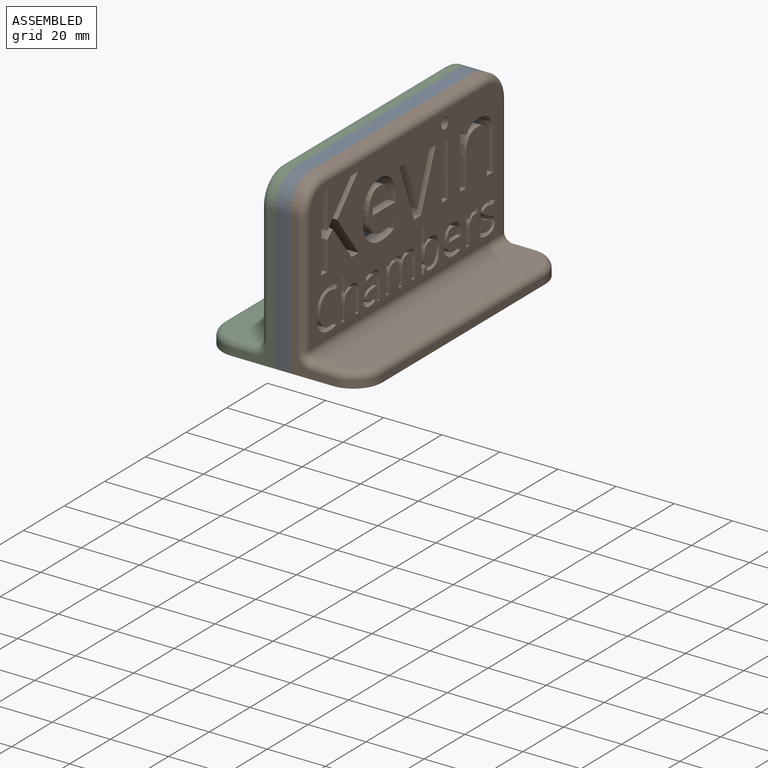
[diagram: assembled view]
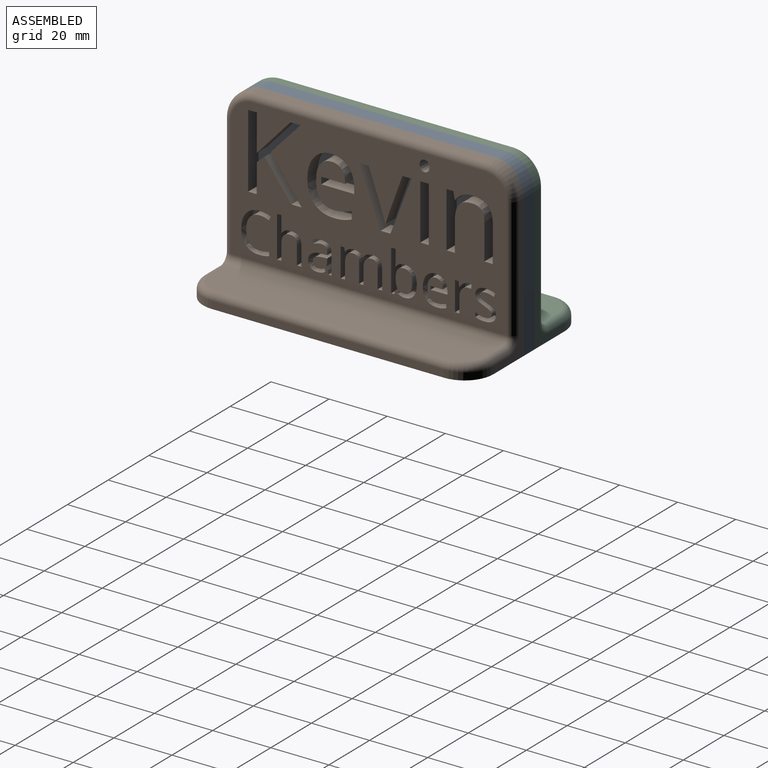
[diagram: assembled view, second angle]
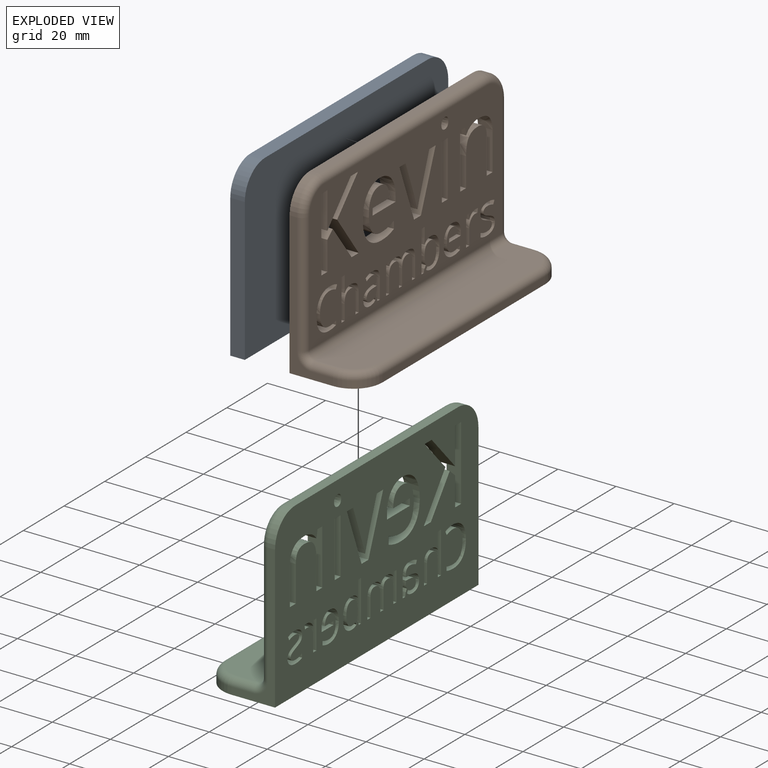
[diagram: exploded view]
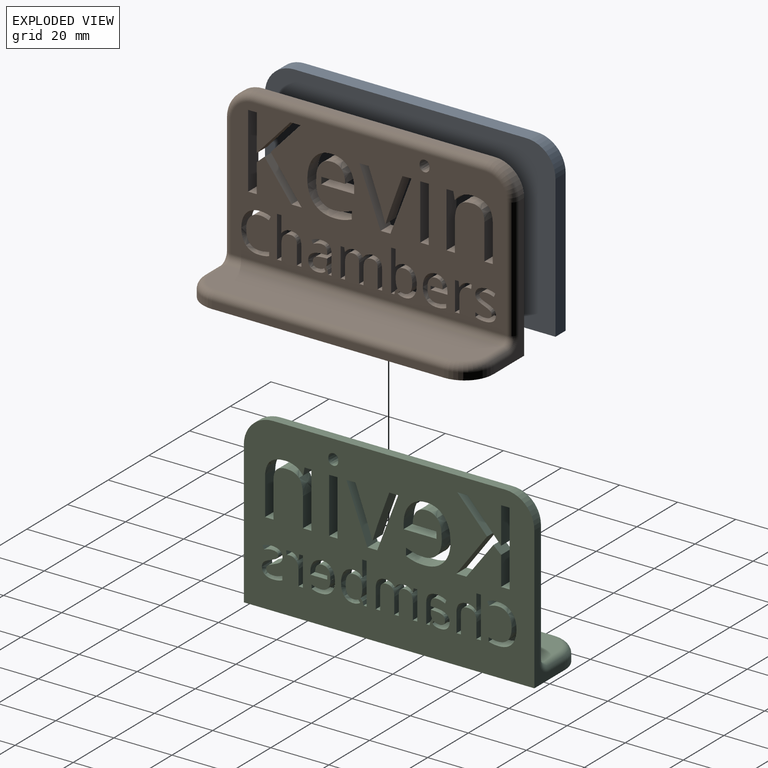
[diagram: exploded view, second angle]
ASSEMBLY  parts=3 mates=10
PART A: 8 faces, bbox 100x5x59.1 mm
  f0: plane 80x5mm, normal (0,0,1), area 400mm2, adj f4,f5,f6,f7
  f1: plane 49.12x5mm, normal (-1,0,0), area 245.6mm2, adj f2,f4,f5,f6
  f2: plane 100x5mm, normal (0,0,-1), area 500mm2, adj f1,f3,f4,f5
  f3: plane 49.12x5mm, normal (1,0,0), area 245.6mm2, adj f2,f4,f5,f7
  f4: plane 100x59.12mm, normal (0,-1,0), area 5869mm2, adj f0,f1,f2,f3,f6,f7
  f5: plane 100x59.12mm, normal (0,1,0), area 5869mm2, adj f0,f1,f2,f3,f6,f7
  f6: cylinder r=10mm len=10mm, axis (0,1,0), area 78.5mm2, adj f0,f1,f4,f5
  f7: cylinder r=10mm len=10mm, axis (0,-1,0), area 78.5mm2, adj f0,f3,f4,f5
PART B: 277 faces, bbox 25.8x101.6x59.9 mm
  f0: extruded ~5x2.41mm, area 13.8mm2, adj f1,f254,f255,f256
  f1: extruded ~5x1.66mm, area 9.1mm2, adj f0,f2,f255,f256
  f2: extruded ~5x2.16mm, area 12.5mm2, adj f1,f3,f255,f256
  f3: extruded ~5x2.92mm, area 15.4mm2, adj f2,f4,f255,f256
  f4: extruded ~5x3.11mm, area 16mm2, adj f3,f5,f255,f256
  f5: plane 5x1.41mm, normal (0,1,0), area 7mm2, adj f4,f6,f255,f256
  f6: extruded ~5x1.55mm, area 8.3mm2, adj f5,f7,f255,f256
  f7: extruded ~5x1.6mm, area 8.1mm2, adj f6,f8,f255,f256
  f8: extruded ~5x1.83mm, area 9.4mm2, adj f7,f9,f255,f256
  f9: extruded ~5x1.16mm, area 6.9mm2, adj f8,f10,f255,f256
  f10: extruded ~5x1mm, area 5.8mm2, adj f9,f11,f255,f256
  f11: extruded ~5x1.98mm, area 11.1mm2, adj f10,f12,f255,f256
  f12: extruded ~5x1.99mm, area 10.9mm2, adj f11,f13,f255,f256
  f13: extruded ~5x0.88mm, area 6.3mm2, adj f12,f14,f255,f256
  f14: extruded ~5x1.18mm, area 6.1mm2, adj f13,f15,f255,f256
  f15: extruded ~5x1.93mm, area 11.3mm2, adj f14,f16,f255,f256
  f16: extruded ~5x2.73mm, area 14.3mm2, adj f15,f17,f255,f256
  f17: extruded ~5x3.16mm, area 16.3mm2, adj f16,f18,f255,f256
  f18: plane 5x1.23mm, normal (0,-0.92,0.4), area 6.7mm2, adj f17,f19,f255,f256
  f19: extruded ~5x2.73mm, area 14.1mm2, adj f18,f20,f255,f256
  f20: extruded ~5x1.63mm, area 8.4mm2, adj f19,f21,f255,f256
  f21: extruded ~5x0.93mm, area 5.7mm2, adj f20,f22,f255,f256
  f22: extruded ~5x0.69mm, area 3.6mm2, adj f21,f23,f255,f256
  f23: extruded ~5x0.66mm, area 4.3mm2, adj f22,f254,f255,f256
  f24: extruded ~5x1.51mm, area 10.2mm2, adj f25,f240,f255,f256
  f25: extruded ~5x1.73mm, area 9.2mm2, adj f24,f26,f255,f256
  f26: extruded ~5x1.2mm, area 6mm2, adj f25,f27,f255,f256
  f27: plane 5x1.41mm, normal (0,-0.99,0.15), area 7.1mm2, adj f26,f28,f255,f256
  f28: extruded ~5x1.1mm, area 5.5mm2, adj f27,f29,f255,f256
  f29: extruded ~5x2.08mm, area 11.9mm2, adj f28,f30,f255,f256
  f30: extruded ~5x2.46mm, area 13.3mm2, adj f29,f31,f255,f256
  f31: plane 5.37x5mm, normal (0,-1,0), area 26.9mm2, adj f30,f32,f255,f256
  f32: plane 5x1.52mm, normal (0,0,1), area 7.6mm2, adj f31,f33,f255,f256
  f33: plane 10.02x5mm, normal (0,1,0), area 50.1mm2, adj f32,f34,f255,f256
  f34: plane 5x1.25mm, normal (0,0,-1), area 6.3mm2, adj f33,f35,f255,f256
  f35: plane 5x1.85mm, normal (0,-1,-0.09), area 9.3mm2, adj f34,f240,f255,f256
  f36: plane 6.53x5mm, normal (0,-1,0), area 32.7mm2, adj f37,f241,f255,f256
  f37: plane 5x1.51mm, normal (0,0,1), area 7.6mm2, adj f36,f38,f255,f256
  f38: plane 6.52x5mm, normal (0,1,0), area 32.6mm2, adj f37,f39,f255,f256
  f39: extruded ~5x1.8mm, area 9.5mm2, adj f38,f40,f255,f256
  f40: extruded ~5x1.59mm, area 8.8mm2, adj f39,f41,f255,f256
  f41: extruded ~5x2.09mm, area 11.6mm2, adj f40,f42,f255,f256
  f42: extruded ~5x2.5mm, area 13.2mm2, adj f41,f43,f255,f256
  f43: plane 5.59x5mm, normal (0,-1,0), area 28mm2, adj f42,f44,f255,f256
  f44: plane 5x1.52mm, normal (0,0,1), area 7.6mm2, adj f43,f45,f255,f256
  f45: plane 6.52x5mm, normal (0,1,0), area 32.6mm2, adj f44,f46,f255,f256
  f46: extruded ~5x1.8mm, area 9.5mm2, adj f45,f47,f255,f256
  f47: extruded ~5x1.6mm, area 8.8mm2, adj f46,f48,f255,f256
  f48: extruded ~5x2.09mm, area 11.7mm2, adj f47,f49,f255,f256
  f49: extruded ~5x2.8mm, area 14.6mm2, adj f48,f50,f255,f256
  f50: plane 5.25x5mm, normal (0,-1,0), area 26.3mm2, adj f49,f51,f255,f256
  f51: plane 5x1.52mm, normal (0,0,1), area 7.6mm2, adj f50,f52,f255,f256
  f52: plane 10.02x5mm, normal (0,1,0), area 50.1mm2, adj f51,f53,f255,f256
  f53: plane 5x1.23mm, normal (0,0,-1), area 6.2mm2, adj f52,f54,f255,f256
  f54: plane 5x1.37mm, normal (0,-0.98,-0.18), area 7mm2, adj f53,f55,f255,f256
  f55: plane 5x0.07mm, normal (0,0,-1), area 0.4mm2, adj f54,f56,f255,f256
  f56: extruded ~5x1.21mm, area 8.4mm2, adj f55,f57,f255,f256
  f57: extruded ~5x1.75mm, area 9.1mm2, adj f56,f58,f255,f256
  f58: extruded ~5x3.07mm, area 18.7mm2, adj f57,f59,f255,f256
  f59: plane 5x0.07mm, normal (0,0,-1), area 0.4mm2, adj f58,f60,f255,f256
  f60: extruded ~5x1.3mm, area 9.1mm2, adj f59,f61,f255,f256
  f61: extruded ~5x1.94mm, area 10.1mm2, adj f60,f62,f255,f256
  f62: extruded ~5x2.54mm, area 13.8mm2, adj f61,f241,f255,f256
  f63: plane 6.53x5mm, normal (0,-1,0), area 32.7mm2, adj f64,f242,f255,f256
  f64: plane 5x1.52mm, normal (0,0,1), area 7.6mm2, adj f63,f65,f255,f256
  f65: plane 6.48x5mm, normal (0,1,0), area 32.4mm2, adj f64,f66,f255,f256
  f66: extruded ~5x1.83mm, area 9.8mm2, adj f65,f67,f255,f256
  f67: extruded ~5x1.75mm, area 9.5mm2, adj f66,f68,f255,f256
  f68: extruded ~5x2.31mm, area 12.7mm2, adj f67,f69,f255,f256
  f69: extruded ~5x2.81mm, area 14.8mm2, adj f68,f70,f255,f256
  f70: plane 5.24x5mm, normal (0,-1,0), area 26.2mm2, adj f69,f71,f255,f256
  f71: plane 5x1.52mm, normal (0,0,1), area 7.6mm2, adj f70,f72,f255,f256
  f72: plane 14.22x5mm, normal (0,1,0), area 71.1mm2, adj f71,f73,f255,f256
  f73: plane 5x1.52mm, normal (0,0,-1), area 7.6mm2, adj f72,f74,f255,f256
  f74: plane 5x4.3mm, normal (0,-1,0), area 21.5mm2, adj f73,f75,f255,f256
  f75: extruded ~5x1.29mm, area 6.5mm2, adj f74,f76,f255,f256
  f76: plane 5x0.09mm, normal (0,0,-1), area 0.5mm2, adj f75,f77,f255,f256
  f77: extruded ~5x1.28mm, area 8.7mm2, adj f76,f78,f255,f256
  f78: extruded ~5x1.89mm, area 9.7mm2, adj f77,f79,f255,f256
  f79: extruded ~5x2.76mm, area 14.8mm2, adj f78,f242,f255,f256
  f80: plane 5x1.33mm, normal (0,-0.9,0.44), area 7.4mm2, adj f81,f243,f255,f256
  f81: extruded ~5x3.04mm, area 15.7mm2, adj f80,f82,f255,f256
  f82: extruded ~5x3.48mm, area 19.5mm2, adj f81,f83,f255,f256
  f83: extruded ~5x4.02mm, area 21.5mm2, adj f82,f84,f255,f256
  f84: extruded ~5x4.05mm, area 21.6mm2, adj f83,f85,f255,f256
  f85: extruded ~5x3.5mm, area 19.6mm2, adj f84,f86,f255,f256
  f86: extruded ~5x3.19mm, area 16.2mm2, adj f85,f87,f255,f256
  f87: plane 5x1.36mm, normal (0,-1,0), area 6.8mm2, adj f86,f88,f255,f256
  f88: extruded ~5x3.43mm, area 17.4mm2, adj f87,f89,f255,f256
  f89: extruded ~5x4.55mm, area 25.3mm2, adj f88,f90,f255,f256
  f90: extruded ~5.09x5mm, area 27.3mm2, adj f89,f91,f255,f256
  f91: extruded ~5x3.62mm, area 18.7mm2, adj f90,f92,f255,f256
  f92: extruded ~5x2.39mm, area 16.6mm2, adj f91,f93,f255,f256
  f93: extruded ~5x3.43mm, area 17.9mm2, adj f92,f243,f255,f256
  f94: plane 12.43x5mm, normal (0,-1,0), area 62.2mm2, adj f95,f244,f255,f256
  f95: plane 5x2.89mm, normal (0,0,1), area 14.4mm2, adj f94,f96,f255,f256
  f96: plane 12.33x5mm, normal (0,1,0), area 61.7mm2, adj f95,f97,f255,f256
  f97: extruded ~5x3.48mm, area 18.6mm2, adj f96,f98,f255,f256
  f98: extruded ~5x3.33mm, area 18.1mm2, adj f97,f99,f255,f256
  f99: extruded ~5x4.38mm, area 24.1mm2, adj f98,f100,f255,f256
  f100: extruded ~5.34x5mm, area 28.1mm2, adj f99,f101,f255,f256
  f101: plane 10x5mm, normal (0,-1,0), area 50mm2, adj f100,f102,f255,f256
  f102: plane 5x2.89mm, normal (0,0,1), area 14.4mm2, adj f101,f103,f255,f256
  f103: plane 19.06x5mm, normal (0,1,0), area 95.3mm2, adj f102,f104,f255,f256
  f104: plane 5x2.35mm, normal (0,0,-1), area 11.7mm2, adj f103,f105,f255,f256
  f105: plane 5x2.61mm, normal (0,-0.98,-0.18), area 13.3mm2, adj f104,f106,f255,f256
  f106: plane 5x0.14mm, normal (0,0,-1), area 0.7mm2, adj f105,f107,f255,f256
  f107: extruded ~5x2.49mm, area 16.8mm2, adj f106,f108,f255,f256
  f108: extruded ~5x3.56mm, area 18.4mm2, adj f107,f109,f255,f256
  f109: extruded ~5.18x5mm, area 27.9mm2, adj f108,f244,f255,f256
  f110: extruded ~5x1.22mm, area 6.7mm2, adj f111,f245,f255,f256
  f111: extruded ~5x1.45mm, area 7.9mm2, adj f110,f112,f255,f256
  f112: extruded ~5x1.45mm, area 7.9mm2, adj f111,f113,f255,f256
  f113: extruded ~5x1.22mm, area 6.7mm2, adj f112,f114,f255,f256
  f114: extruded ~5x1.2mm, area 6.6mm2, adj f113,f115,f255,f256
  f115: extruded ~5x1.44mm, area 7.9mm2, adj f114,f116,f255,f256
  f116: extruded ~5x1.45mm, area 7.9mm2, adj f115,f245,f255,f256
  f117: plane 5x2.89mm, normal (0,0,-1), area 14.4mm2, adj f118,f246,f255,f256
  f118: plane 19.06x5mm, normal (0,-1,0), area 95.3mm2, adj f117,f119,f255,f256
  f119: plane 5x2.89mm, normal (0,0,1), area 14.4mm2, adj f118,f246,f255,f256
  f120: plane 19.06x7.23mm, normal (0,-0.93,0.35), area 101.9mm2, adj f121,f247,f255,f256
  f121: plane 5x3.37mm, normal (0,0,1), area 16.9mm2, adj f120,f122,f255,f256
  f122: plane 19.06x7.23mm, normal (0,0.93,0.35), area 101.9mm2, adj f121,f123,f255,f256
  f123: plane 5x3.09mm, normal (0,0,-1), area 15.5mm2, adj f122,f124,f255,f256
  f124: plane 11.3x5mm, normal (0,-0.94,-0.34), area 60.1mm2, adj f123,f125,f255,f256
  f125: extruded ~5.15x5mm, area 27mm2, adj f124,f126,f255,f256
  f126: plane 5x0.14mm, normal (0,0,-1), area 0.7mm2, adj f125,f127,f255,f256
  f127: extruded ~5x3.82mm, area 20mm2, adj f126,f128,f255,f256
  f128: extruded ~12.64x5mm, area 67.2mm2, adj f127,f247,f255,f256
  f129: plane 11.05x10.22mm, normal (0,-0.73,0.68), area 75.3mm2, adj f130,f248,f255,f256
  f130: plane 14.38x10.61mm, normal (0,-0.8,-0.59), area 89.3mm2, adj f129,f131,f255,f256
  f131: plane 5x3.48mm, normal (0,0,1), area 17.4mm2, adj f130,f132,f255,f256
  f132: plane 12.33x9.27mm, normal (0,0.8,0.6), area 77.1mm2, adj f131,f133,f255,f256
  f133: plane 5x2.67mm, normal (0,-0.66,0.75), area 17.8mm2, adj f132,f134,f255,f256
  f134: plane 9.97x5mm, normal (0,-1,0), area 49.8mm2, adj f133,f135,f255,f256
  f135: plane 5x2.96mm, normal (0,0,1), area 14.8mm2, adj f134,f136,f255,f256
  f136: plane 25.43x5mm, normal (0,1,0), area 127.1mm2, adj f135,f137,f255,f256
  f137: plane 5x2.96mm, normal (0,0,-1), area 14.8mm2, adj f136,f138,f255,f256
  f138: plane 12.61x5mm, normal (0,-1,0), area 63.1mm2, adj f137,f139,f255,f256
  f139: plane 12.61x11.53mm, normal (0,0.74,-0.67), area 85.4mm2, adj f138,f248,f255,f256
  f140: plane 80x2.5mm, normal (0,0,1), area 200mm2, adj f256,f257,f258,f273
  f141: plane 49.12x15mm, normal (0,-1,0), area 159.4mm2, adj f256,f257,f260,f263,f266,f267,f269
  f142: plane 5x0.91mm, normal (0,-0.91,-0.42), area 5mm2, adj f143,f250,f255,f256
  f143: extruded ~5x0.91mm, area 5.6mm2, adj f142,f144,f255,f256
  f144: extruded ~5x1.86mm, area 9.5mm2, adj f143,f145,f255,f256
  f145: extruded ~5x2.33mm, area 12.6mm2, adj f144,f146,f255,f256
  f146: extruded ~5x2.18mm, area 12.1mm2, adj f145,f147,f255,f256
  f147: extruded ~5x4.85mm, area 32.6mm2, adj f146,f148,f255,f256
  f148: plane 5x1.7mm, normal (0,0.03,-1), area 8.5mm2, adj f147,f149,f255,f256
  f149: plane 5x0.62mm, normal (0,1,0), area 3.1mm2, adj f148,f150,f255,f256
  f150: extruded ~5x1.74mm, area 9.3mm2, adj f149,f151,f255,f256
  f151: extruded ~5x1.62mm, area 8.8mm2, adj f150,f152,f255,f256
  f152: extruded ~5x2.83mm, area 14.8mm2, adj f151,f153,f255,f256
  f153: plane 5x1.16mm, normal (0,0.93,0.37), area 6.3mm2, adj f152,f154,f255,f256
  f154: extruded ~5x1.62mm, area 8.7mm2, adj f153,f155,f255,f256
  f155: extruded ~5x1.77mm, area 9mm2, adj f154,f156,f255,f256
  f156: extruded ~5x2.65mm, area 14.2mm2, adj f155,f157,f255,f256
  f157: extruded ~5x2.55mm, area 13.8mm2, adj f156,f158,f255,f256
  f158: plane 6.84x5mm, normal (0,-1,0), area 34.2mm2, adj f157,f159,f255,f256
  f159: plane 5x1.13mm, normal (0,0,1), area 5.6mm2, adj f158,f160,f255,f256
  f160: plane 5x1.43mm, normal (0,0.98,0.21), area 7.3mm2, adj f159,f161,f255,f256
  f161: plane 5x0.07mm, normal (0,0,1), area 0.4mm2, adj f160,f162,f255,f256
  f162: extruded ~5x0.03mm, area 0.2mm2, adj f161,f163,f255,f256
  f163: plane 5x0.92mm, normal (0,0.91,0.42), area 5.1mm2, adj f162,f164,f255,f256
  f164: extruded ~5x1.71mm, area 8.9mm2, adj f163,f165,f255,f256
  f165: plane 5x0.9mm, normal (0,1,0), area 4.5mm2, adj f164,f166,f255,f256
  f166: plane 5x1.52mm, normal (0,-0.04,1), area 7.6mm2, adj f165,f167,f255,f256
  f167: extruded ~5x2.61mm, area 13.5mm2, adj f166,f168,f255,f256
  f168: extruded ~5x1.55mm, area 9.1mm2, adj f167,f169,f255,f256
  f169: extruded ~5x1.25mm, area 7mm2, adj f168,f170,f255,f256
  f170: extruded ~5x1.39mm, area 7.4mm2, adj f169,f250,f255,f256
  f171: plane 11.31x5mm, normal (0,0,1), area 56.6mm2, adj f172,f251,f255,f256
  f172: plane 5x2.35mm, normal (0,1,-0.02), area 11.7mm2, adj f171,f173,f255,f256
  f173: plane 8.17x5mm, normal (0,0,-1), area 40.9mm2, adj f172,f174,f255,f256
  f174: extruded ~5x4.18mm, area 22.2mm2, adj f173,f175,f255,f256
  f175: extruded ~5x3.48mm, area 19.5mm2, adj f174,f176,f255,f256
  f176: extruded ~5x3.66mm, area 20.4mm2, adj f175,f177,f255,f256
  f177: extruded ~5x4.14mm, area 22.6mm2, adj f176,f178,f255,f256
  f178: plane 5x0.05mm, normal (0,0,-1), area 0.3mm2, adj f177,f179,f255,f256
  f179: plane 5x2.35mm, normal (0,-1,0.05), area 11.8mm2, adj f178,f180,f255,f256
  f180: plane 5x0mm, normal (0,0,1), area 0mm2, adj f179,f181,f255,f256
  f181: extruded ~5.1x5mm, area 27.4mm2, adj f180,f182,f255,f256
  f182: extruded ~5x4.53mm, area 25mm2, adj f181,f183,f255,f256
  f183: extruded ~6.08x5mm, area 31.3mm2, adj f182,f184,f255,f256
  f184: plane 5x2.58mm, normal (0,-1,0), area 12.9mm2, adj f183,f185,f255,f256
  f185: extruded ~5x2.89mm, area 15.2mm2, adj f184,f186,f255,f256
  f186: extruded ~5x3.29mm, area 16.6mm2, adj f185,f187,f255,f256
  f187: extruded ~6.67x5mm, area 36.8mm2, adj f186,f188,f255,f256
  f188: extruded ~7.15x5mm, area 38.7mm2, adj f187,f189,f255,f256
  f189: extruded ~7.33x5mm, area 39.2mm2, adj f188,f190,f255,f256
  f190: extruded ~6.1x5mm, area 34.6mm2, adj f189,f191,f255,f256
  f191: extruded ~5.67x5mm, area 31.7mm2, adj f190,f192,f255,f256
  f192: extruded ~6.22x5mm, area 33.6mm2, adj f191,f251,f255,f256
  f193: extruded ~5x2.17mm, area 11.9mm2, adj f194,f252,f255,f256
  f194: plane 5x0.01mm, normal (0,0,-1), area 0.1mm2, adj f193,f195,f255,f256
  f195: plane 5x1.23mm, normal (0,-1,0), area 6.2mm2, adj f194,f196,f255,f256
  f196: plane 5x0.05mm, normal (0,0,1), area 0.2mm2, adj f195,f197,f255,f256
  f197: extruded ~5x2.68mm, area 14.4mm2, adj f196,f198,f255,f256
  f198: extruded ~5x2.38mm, area 13.1mm2, adj f197,f199,f255,f256
  f199: extruded ~5x3.2mm, area 16.4mm2, adj f198,f200,f255,f256
  f200: plane 5x1.35mm, normal (0,-1,0), area 6.8mm2, adj f199,f201,f255,f256
  f201: extruded ~5x1.52mm, area 8mm2, adj f200,f202,f255,f256
  f202: extruded ~5x1.73mm, area 8.7mm2, adj f201,f203,f255,f256
  f203: extruded ~5x3.5mm, area 19.3mm2, adj f202,f204,f255,f256
  f204: extruded ~5x3.75mm, area 20.3mm2, adj f203,f205,f255,f256
  f205: extruded ~5x3.85mm, area 20.6mm2, adj f204,f206,f255,f256
  f206: extruded ~5x3.21mm, area 18.2mm2, adj f205,f207,f255,f256
  f207: extruded ~5x2.98mm, area 16.6mm2, adj f206,f208,f255,f256
  f208: extruded ~5x3.27mm, area 17.6mm2, adj f207,f209,f255,f256
  f209: plane 5x0.96mm, normal (0,-1,0), area 4.8mm2, adj f208,f210,f255,f256
  f210: plane 5.8x5mm, normal (0,0,1), area 29mm2, adj f209,f211,f255,f256
  f211: plane 5x1.23mm, normal (0,1,0), area 6.2mm2, adj f210,f212,f255,f256
  f212: plane 5x4.18mm, normal (0,0,-1), area 20.9mm2, adj f211,f213,f255,f256
  f213: extruded ~5x2.2mm, area 11.7mm2, adj f212,f214,f255,f256
  f214: extruded ~5x1.83mm, area 10.3mm2, adj f213,f252,f255,f256
  f215: extruded ~5x3mm, area 15.6mm2, adj f216,f253,f255,f256
  f216: extruded ~5x2.93mm, area 15.2mm2, adj f215,f217,f255,f256
  f217: plane 5x0.82mm, normal (0,-0.79,0.61), area 5.1mm2, adj f216,f218,f255,f256
  f218: extruded ~5x0.01mm, area 0.1mm2, adj f217,f219,f255,f256
  f219: plane 5x0.11mm, normal (0,0,1), area 0.6mm2, adj f218,f220,f255,f256
  f220: plane 5x1.29mm, normal (0,-0.97,0.24), area 6.6mm2, adj f219,f221,f255,f256
  f221: plane 5x1.09mm, normal (0,0,1), area 5.4mm2, adj f220,f222,f255,f256
  f222: plane 14.22x5mm, normal (0,1,0), area 71.1mm2, adj f221,f223,f255,f256
  f223: plane 5x1.52mm, normal (0,0,-1), area 7.6mm2, adj f222,f224,f255,f256
  f224: plane 5x3.46mm, normal (0,-1,0), area 17.3mm2, adj f223,f225,f255,f256
  f225: extruded ~5x2.08mm, area 10.4mm2, adj f224,f226,f255,f256
  f226: plane 5x0.07mm, normal (0,0,-1), area 0.4mm2, adj f225,f227,f255,f256
  f227: extruded ~5x3.14mm, area 18.2mm2, adj f226,f228,f255,f256
  f228: extruded ~5x3.07mm, area 17.4mm2, adj f227,f229,f255,f256
  f229: extruded ~5x3.81mm, area 20.2mm2, adj f228,f230,f255,f256
  f230: extruded ~5x3.84mm, area 20.3mm2, adj f229,f231,f255,f256
  f231: extruded ~5x3.06mm, area 17.4mm2, adj f230,f232,f255,f256
  f232: extruded ~5x1.79mm, area 9.2mm2, adj f231,f233,f255,f256
  f233: extruded ~5x0.65mm, area 3.8mm2, adj f232,f234,f255,f256
  f234: plane 5x0.87mm, normal (0,0.79,-0.61), area 5.5mm2, adj f233,f235,f255,f256
  f235: extruded ~5x1.59mm, area 8.2mm2, adj f234,f236,f255,f256
  f236: extruded ~5x2.08mm, area 12.1mm2, adj f235,f237,f255,f256
  f237: extruded ~5x2.93mm, area 15.3mm2, adj f236,f238,f255,f256
  f238: extruded ~5x2.92mm, area 15.2mm2, adj f237,f239,f255,f256
  f239: extruded ~5x2.12mm, area 12.1mm2, adj f238,f253,f255,f256
  f240: plane 5x0.07mm, normal (0,0,-1), area 0.4mm2, adj f24,f35,f255,f256
  f241: extruded ~5x2.79mm, area 15mm2, adj f36,f62,f255,f256
  f242: extruded ~5x2.77mm, area 15mm2, adj f63,f79,f255,f256
  f243: extruded ~5x3.67mm, area 18.9mm2, adj f80,f93,f255,f256
  f244: extruded ~5.32x5mm, area 28.7mm2, adj f94,f109,f255,f256
  f245: extruded ~5x1.2mm, area 6.6mm2, adj f110,f116,f255,f256
  f246: plane 19.06x5mm, normal (0,1,0), area 95.3mm2, adj f117,f119,f255,f256
  f247: plane 5x3.09mm, normal (0,0,-1), area 15.5mm2, adj f120,f128,f255,f256
  f248: plane 5x3.5mm, normal (0,0,-1), area 17.5mm2, adj f129,f139,f255,f256
  f249: plane 49.12x15mm, normal (0,1,0), area 159.4mm2, adj f256,f258,f260,f262,f271,f274,f276
  f250: extruded ~5x2.05mm, area 10.9mm2, adj f142,f170,f255,f256
  f251: plane 5x1.83mm, normal (0,-1,0), area 9.1mm2, adj f171,f192,f255,f256
  f252: extruded ~5x1.92mm, area 10.7mm2, adj f193,f214,f255,f256
  f253: extruded ~5x2.24mm, area 12.5mm2, adj f215,f239,f255,f256
  f254: extruded ~5x1.75mm, area 9.5mm2, adj f0,f23,f255,f256
  f255: plane 95x49.12mm, normal (1,0,0), area 3710mm2, adj f0,f1,f2,f3,f4,f5,f6,f7
  f256: plane 100x59.12mm, normal (-1,0,0), area 4936.8mm2, adj f0,f1,f2,f3,f4,f5,f6,f7
  f257: cylinder r=10mm len=10mm, axis (-1,0,0), area 39.3mm2, adj f140,f141,f256,f270
  f258: cylinder r=10mm len=10mm, axis (1,0,0), area 39.3mm2, adj f140,f249,f256,f275
  f259: plane 80x2.5mm, normal (1,0,0), area 200mm2, adj f260,f262,f263,f265
  f260: plane 100x25mm, normal (0,0,-1), area 2457.1mm2, adj f141,f249,f256,f259,f262,f263
  f261: plane 95x15mm, normal (0,0,1), area 1400.9mm2, adj f264,f265,f266,f268,f271,f272
  f262: cylinder r=10mm len=10mm, axis (0,0,-1), area 39.3mm2, adj f249,f259,f260,f268
  f263: cylinder r=10mm len=10mm, axis (0,0,1), area 39.3mm2, adj f141,f259,f260,f264
  f264: torus R=7.5mm, axis (0,0,-1), area 56.1mm2, adj f261,f263,f265,f266
  f265: cylinder r=2.5mm len=80mm, axis (0,-1,0), area 314.2mm2, adj f259,f261,f264,f268
  f266: cylinder r=2.5mm len=7.5mm, axis (-1,0,0), area 29.5mm2, adj f141,f261,f264,f269
  f267: cylinder r=2.5mm len=41.62mm, axis (0,0,1), area 163.4mm2, adj f141,f255,f269,f270
  f268: torus R=7.5mm, axis (0,0,-1), area 56.1mm2, adj f261,f262,f265,f271
  f269: torus R=5mm, axis (0,-1,0), area 21mm2, adj f141,f266,f267,f272
  f270: torus R=7.5mm, axis (1,0,0), area 56.1mm2, adj f255,f257,f267,f273
  f271: cylinder r=2.5mm len=7.5mm, axis (1,0,0), area 29.5mm2, adj f249,f261,f268,f274
  f272: cylinder r=2.5mm len=95mm, axis (0,1,0), area 373.1mm2, adj f255,f261,f269,f274
  f273: cylinder r=2.5mm len=80mm, axis (0,1,0), area 314.2mm2, adj f140,f255,f270,f275
  f274: torus R=5mm, axis (0,-1,0), area 21mm2, adj f249,f271,f272,f276
  f275: torus R=7.5mm, axis (1,0,0), area 56.1mm2, adj f255,f258,f273,f276
  f276: cylinder r=2.5mm len=41.62mm, axis (0,0,-1), area 163.4mm2, adj f249,f255,f274,f275
PART C: same geometry as B
PLACE A rot(axis=(0,0,1),90deg) t=(-51.7,0.54,-48.97)mm
PLACE B t=(-46.7,0.54,-43.97)mm
PLACE C rot(axis=(0,0,1),180deg) t=(-51.7,100.54,-43.97)mm
MATE parallel B.f260 <-> A.f2  axis (0,0,-1) through (-34.38,50.54,-48.97)mm
MATE planar A.f4 <-> B.f256  axis (1,0,0) through (-46.7,50.54,-19.61)mm
MATE planar A.f2 <-> C.f260  axis (0,0,-1) through (-49.2,0.54,-48.97)mm
MATE parallel C.f249 <-> A.f1  axis (0,-1,0) through (-54.5,0.54,-29.68)mm
MATE planar A.f1 <-> C.f249  axis (0,-1,0) through (-49.2,0.54,-24.41)mm
MATE parallel A.f1 <-> B.f141  axis (0,-1,0) through (-49.2,0.54,-24.41)mm
MATE planar A.f1 <-> B.f141  axis (0,-1,0) through (-49.2,0.54,-24.41)mm
MATE planar B.f260 <-> A.f2  axis (0,0,-1) through (-39.2,100.54,-48.97)mm
MATE parallel A.f0 <-> C.f140  axis (0,0,1) through (-49.2,50.54,10.15)mm
MATE planar C.f256 <-> A.f5  axis (1,0,0) through (-51.7,50.21,-20.01)mm
